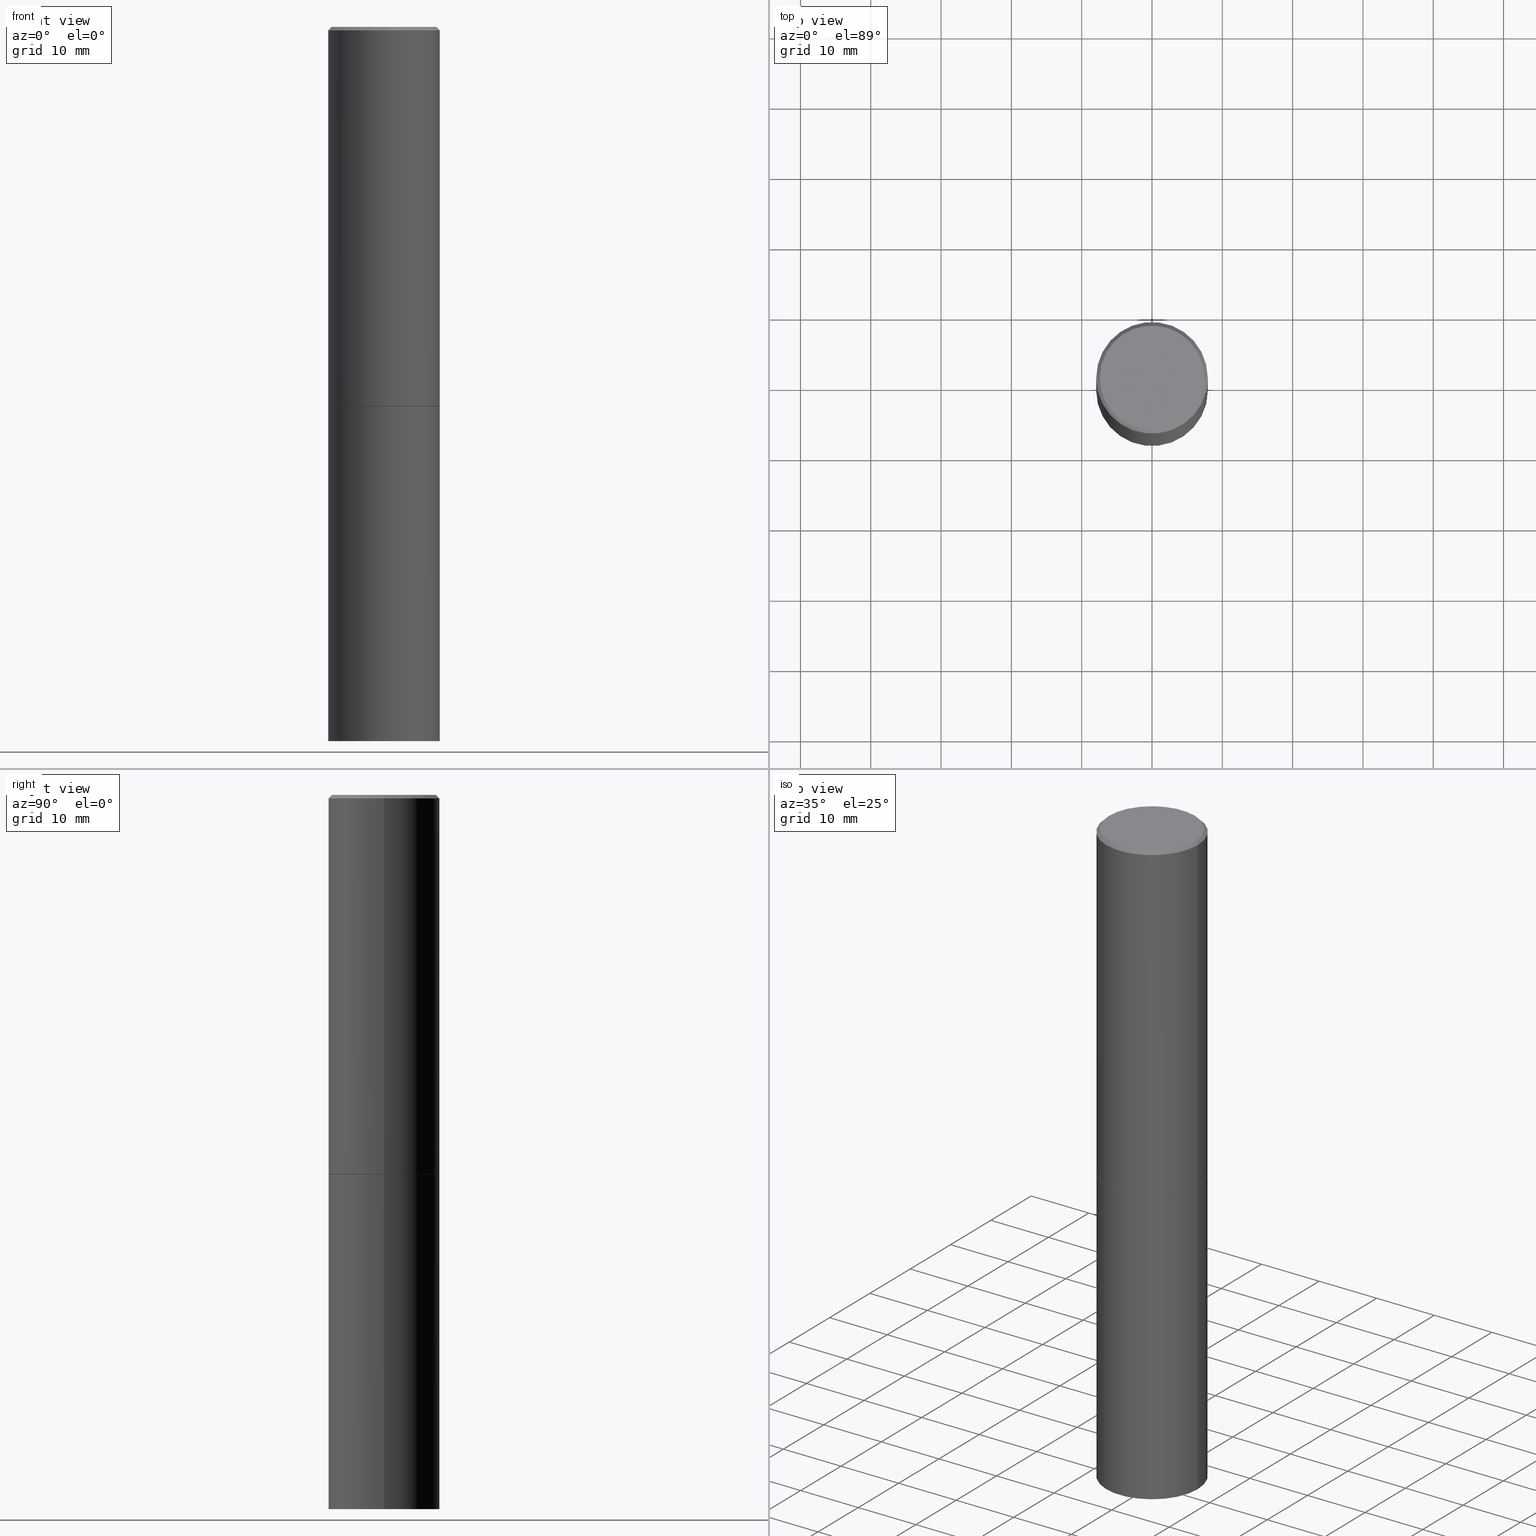
[diagram: canonical four-view strip — front | top / right | iso, engineering-drawing reading convention]
A machine part, canonical four-view strip (front | top / right | iso — engineering-drawing reading convention). The complete STEP part file that produces these views, byte-faithful:
ISO-10303-21;
HEADER;
FILE_DESCRIPTION (( 'STEP AP203' ),
    '1' );
FILE_NAME ('37565.STEP',
    '2024-02-27T22:16:43',
    ( '' ),
    ( '' ),
    'SwSTEP 2.0',
    'SolidWorks 2023',
    '' );
FILE_SCHEMA (( 'CONFIG_CONTROL_DESIGN' ));
ENDSEC;

DATA;
#1 = LINE ( 'NONE', #258, #333 ) ;
#2 = AXIS2_PLACEMENT_3D ( 'NONE', #279, #134, #167 ) ;
#3 = LOCAL_TIME ( 17, 16, 43.00000000000000000, #102 ) ;
#4 = PERSON_AND_ORGANIZATION_ROLE ( 'creator' ) ;
#5 = EDGE_LOOP ( 'NONE', ( #101, #124, #188, #237 ) ) ;
#6 = ADVANCED_FACE ( 'NONE', ( #228 ), #276, .T. ) ;
#7 = FACE_OUTER_BOUND ( 'NONE', #359, .T. ) ;
#8 = DATE_AND_TIME ( #67, #3 ) ;
#9 = EDGE_CURVE ( 'NONE', #137, #261, #304, .T. ) ;
#10 = CARTESIAN_POINT ( 'NONE',  ( 5.196621213143414147E-29, -7.419397845041682046E-15, -2.124999999999999556 ) ) ;
#11 = AXIS2_PLACEMENT_3D ( 'NONE', #185, #179, #73 ) ;
#12 = LINE ( 'NONE', #209, #243 ) ;
#13 = ORIENTED_EDGE ( 'NONE', *, *, #159, .T. ) ;
#14 = CARTESIAN_POINT ( 'NONE',  ( 2.042516583223231356E-15, 0.2924999999999997602, -1.019124035366569212E-15 ) ) ;
#15 = CC_DESIGN_DATE_AND_TIME_ASSIGNMENT ( #31, #171, ( #326 ) ) ;
#16 = DIRECTION ( 'NONE',  ( 2.438088387897960049E-29, -3.491481338843145188E-15, -1.000000000000000000 ) ) ;
#17 = CIRCLE ( 'NONE', #125, 0.3125000000000000000 ) ;
#18 = DIRECTION ( 'NONE',  ( -0.7071067811865232589, 7.493145998870265808E-15, 0.7071067811865715536 ) ) ;
#19 = AXIS2_PLACEMENT_3D ( 'NONE', #298, #296, #46 ) ;
#20 = ORIENTED_EDGE ( 'NONE', *, *, #60, .F. ) ;
#21 = ADVANCED_FACE ( 'NONE', ( #55 ), #321, .T. ) ;
#22 = PERSON_AND_ORGANIZATION_ROLE ( 'design_owner' ) ;
#23 = COORDINATED_UNIVERSAL_TIME_OFFSET ( 5, 0, .BEHIND. ) ;
#24 = EDGE_LOOP ( 'NONE', ( #354, #295 ) ) ;
#25 = CARTESIAN_POINT ( 'NONE',  ( 0.000000000000000000, 0.000000000000000000, 0.000000000000000000 ) ) ;
#26 = CARTESIAN_POINT ( 'NONE',  ( 0.3124999999999998335, -2.213735251080465334E-15, -0.02000000000000007674 ) ) ;
#27 = ORIENTED_EDGE ( 'NONE', *, *, #9, .T. ) ;
#28 = PERSON_AND_ORGANIZATION ( #180, #305 ) ;
#29 = DIRECTION ( 'NONE',  ( -2.445468806185136597E-29, 3.491481338843145583E-15, 1.000000000000000000 ) ) ;
#30 = VERTEX_POINT ( 'NONE', #53 ) ;
#31 = DATE_AND_TIME ( #57, #52 ) ;
#32 = ORIENTED_EDGE ( 'NONE', *, *, #348, .F. ) ;
#33 = CARTESIAN_POINT ( 'NONE',  ( 0.3114999999999999991, -9.594590719140955956E-15, -2.124999999999999556 ) ) ;
#34 = CARTESIAN_POINT ( 'NONE',  ( -0.3114999999999999991, -5.200758768800747571E-15, -2.124999999999999556 ) ) ;
#35 = VECTOR ( 'NONE', #136, 39.37007874015748143 ) ;
#36 = AXIS2_PLACEMENT_3D ( 'NONE', #241, #183, #40 ) ;
#37 = COORDINATED_UNIVERSAL_TIME_OFFSET ( 5, 0, .BEHIND. ) ;
#38 = DIRECTION ( 'NONE',  ( 1.000000000000000000, -6.982962677686265133E-15, 0.000000000000000000 ) ) ;
#39 = ORIENTED_EDGE ( 'NONE', *, *, #257, .T. ) ;
#40 = DIRECTION ( 'NONE',  ( 1.000000000000000000, -6.982962677686266711E-15, 4.876176775795936353E-29 ) ) ;
#41 = CIRCLE ( 'NONE', #292, 0.2924999999999997602 ) ;
#42 = CC_DESIGN_APPROVAL ( #347, ( #255 ) ) ;
#43 = CARTESIAN_POINT ( 'NONE',  ( 5.196621213143414147E-29, -7.419397845041682046E-15, -2.124999999999999556 ) ) ;
#44 = FACE_OUTER_BOUND ( 'NONE', #5, .T. ) ;
#45 = VERTEX_POINT ( 'NONE', #331 ) ;
#46 = DIRECTION ( 'NONE',  ( 1.000000000000000000, -6.982962677686265133E-15, 0.000000000000000000 ) ) ;
#47 = APPLICATION_CONTEXT ( 'configuration controlled 3d designs of mechanical parts and assemblies' ) ;
#48 =( NAMED_UNIT ( * ) PLANE_ANGLE_UNIT ( ) SI_UNIT ( $, .RADIAN. ) );
#49 = CARTESIAN_POINT ( 'NONE',  ( 0.3125000000000000000, -1.614810119214954068E-14, -4.000000000000000000 ) ) ;
#50 = CALENDAR_DATE ( 2024, 27, 2 ) ;
#51 = VECTOR ( 'NONE', #194, 39.37007874015748143 ) ;
#52 = LOCAL_TIME ( 17, 16, 43.00000000000000000, #224 ) ;
#53 = CARTESIAN_POINT ( 'NONE',  ( 0.2924999999999997602, -2.110215457714318353E-15, 4.268512490114932791E-18 ) ) ;
#54 = ADVANCED_FACE ( 'NONE', ( #330 ), #251, .F. ) ;
#55 = FACE_OUTER_BOUND ( 'NONE', #122, .T. ) ;
#56 = ORIENTED_EDGE ( 'NONE', *, *, #80, .F. ) ;
#57 = CALENDAR_DATE ( 2024, 27, 2 ) ;
#58 = DIRECTION ( 'NONE',  ( 1.000000000000000000, -6.982962677686269077E-15, 0.000000000000000000 ) ) ;
#59 = DESIGN_CONTEXT ( 'detailed design', #264, 'design' ) ;
#60 = EDGE_CURVE ( 'NONE', #30, #261, #272, .T. ) ;
#61 = CIRCLE ( 'NONE', #19, 0.3125000000000000000 ) ;
#62 = ORIENTED_EDGE ( 'NONE', *, *, #318, .T. ) ;
#63 = CALENDAR_DATE ( 2024, 27, 2 ) ;
#64 = DIRECTION ( 'NONE',  ( -2.445468806185136597E-29, 3.491481338843145583E-15, 1.000000000000000000 ) ) ;
#65 = AXIS2_PLACEMENT_3D ( 'NONE', #149, #265, #58 ) ;
#66 = CIRCLE ( 'NONE', #153, 0.3125000000000000000 ) ;
#67 = CALENDAR_DATE ( 2024, 27, 2 ) ;
#68 = DIRECTION ( 'NONE',  ( 1.000000000000000000, -6.982962677686269077E-15, 0.000000000000000000 ) ) ;
#69 = PLANE ( 'NONE',  #161 ) ;
#70 = DIRECTION ( 'NONE',  ( -1.000000000000000000, 6.982962677686265922E-15, -4.876176775795935793E-29 ) ) ;
#71 = ORIENTED_EDGE ( 'NONE', *, *, #175, .T. ) ;
#72 = PLANE ( 'NONE',  #213 ) ;
#73 = DIRECTION ( 'NONE',  ( 1.000000000000000000, -6.982962677686265133E-15, 0.000000000000000000 ) ) ;
#74 = DIRECTION ( 'NONE',  ( 1.000000000000000000, -6.982962677686266711E-15, 4.876067333457693400E-29 ) ) ;
#75 = CC_DESIGN_PERSON_AND_ORGANIZATION_ASSIGNMENT ( #117, #338, ( #255 ) ) ;
#76 = CC_DESIGN_DATE_AND_TIME_ASSIGNMENT ( #290, #260, ( #104 ) ) ;
#77 = DIRECTION ( 'NONE',  ( -2.445468806185136597E-29, 3.491481338843145583E-15, 1.000000000000000000 ) ) ;
#78 = EDGE_CURVE ( 'NONE', #113, #261, #82, .T. ) ;
#79 = DIRECTION ( 'NONE',  ( 1.000000000000000000, -6.982962677686269077E-15, 0.000000000000000000 ) ) ;
#80 = EDGE_CURVE ( 'NONE', #111, #45, #246, .T. ) ;
#81 =( LENGTH_UNIT ( ) NAMED_UNIT ( * ) SI_UNIT ( $, .METRE. ) );
#82 = LINE ( 'NONE', #112, #51 ) ;
#83 =( CONVERSION_BASED_UNIT ( 'INCH', #135 ) LENGTH_UNIT ( ) NAMED_UNIT ( #266 ) );
#84 = AXIS2_PLACEMENT_3D ( 'NONE', #119, #120, #92 ) ;
#85 = CONICAL_SURFACE ( 'NONE', #196, 0.3124999999999998335, 0.7853981633974469467 ) ;
#86 = UNCERTAINTY_MEASURE_WITH_UNIT (LENGTH_MEASURE( 1.000000000000000082E-05 ), #83, 'distance_accuracy_value', 'NONE');
#87 = CYLINDRICAL_SURFACE ( 'NONE', #147, 0.3124999999999998890 ) ;
#88 = EDGE_CURVE ( 'NONE', #223, #337, #220, .T. ) ;
#89 = CYLINDRICAL_SURFACE ( 'NONE', #84, 0.3125000000000000000 ) ;
#90 = ORIENTED_EDGE ( 'NONE', *, *, #342, .T. ) ;
#91 = PERSON_AND_ORGANIZATION ( #180, #305 ) ;
#92 = DIRECTION ( 'NONE',  ( 1.000000000000000000, -6.982962677686266711E-15, 4.876176775795936353E-29 ) ) ;
#93 = ADVANCED_FACE ( 'NONE', ( #225 ), #87, .T. ) ;
#94 = PERSON_AND_ORGANIZATION ( #180, #305 ) ;
#95 = ORIENTED_EDGE ( 'NONE', *, *, #280, .F. ) ;
#96 = CONICAL_SURFACE ( 'NONE', #236, 0.3114999999999999991, 0.7853981633974141952 ) ;
#97 = FACE_OUTER_BOUND ( 'NONE', #181, .T. ) ;
#98 = DIRECTION ( 'NONE',  ( 2.445468806185136597E-29, -3.491481338843145583E-15, -1.000000000000000000 ) ) ;
#99 = CARTESIAN_POINT ( 'NONE',  ( -0.3125000000000000000, -8.472215550956819896E-15, -4.000000000000000000 ) ) ;
#100 = VECTOR ( 'NONE', #192, 39.37007874015748143 ) ;
#101 = ORIENTED_EDGE ( 'NONE', *, *, #257, .F. ) ;
#102 = COORDINATED_UNIVERSAL_TIME_OFFSET ( 5, 0, .BEHIND. ) ;
#103 = FACE_OUTER_BOUND ( 'NONE', #327, .T. ) ;
#104 = PRODUCT_DEFINITION ( 'UNKNOWN', '', #255, #59 ) ;
#105 = PERSON_AND_ORGANIZATION ( #180, #305 ) ;
#106 = CC_DESIGN_PERSON_AND_ORGANIZATION_ASSIGNMENT ( #91, #306, ( #104 ) ) ;
#107 = ORIENTED_EDGE ( 'NONE', *, *, #78, .F. ) ;
#108 = CIRCLE ( 'NONE', #130, 0.3114999999999999991 ) ;
#109 = APPLICATION_PROTOCOL_DEFINITION ( 'international standard', 'config_control_design', 1994, #47 ) ;
#110 = DIRECTION ( 'NONE',  ( 2.445468806185136597E-29, -3.491481338843145583E-15, -1.000000000000000000 ) ) ;
#111 = VERTEX_POINT ( 'NONE', #49 ) ;
#112 = CARTESIAN_POINT ( 'NONE',  ( 0.3124999999999998890, -2.182175836776957558E-15, 1.523805242436229235E-29 ) ) ;
#113 = VERTEX_POINT ( 'NONE', #162 ) ;
#114 = CALENDAR_DATE ( 2024, 27, 2 ) ;
#115 = AXIS2_PLACEMENT_3D ( 'NONE', #282, #29, #235 ) ;
#116 = ORIENTED_EDGE ( 'NONE', *, *, #145, .T. ) ;
#117 = PERSON_AND_ORGANIZATION ( #180, #305 ) ;
#118 = ORIENTED_EDGE ( 'NONE', *, *, #332, .F. ) ;
#119 = CARTESIAN_POINT ( 'NONE',  ( 0.000000000000000000, 0.000000000000000000, 0.000000000000000000 ) ) ;
#120 = DIRECTION ( 'NONE',  ( -2.445468806185136597E-29, 3.491481338843145583E-15, 1.000000000000000000 ) ) ;
#121 = AXIS2_PLACEMENT_3D ( 'NONE', #358, #249, #215 ) ;
#122 = EDGE_LOOP ( 'NONE', ( #208, #281, #71, #214 ) ) ;
#123 = SECURITY_CLASSIFICATION_LEVEL ( 'unclassified' ) ;
#124 = ORIENTED_EDGE ( 'NONE', *, *, #200, .T. ) ;
#125 = AXIS2_PLACEMENT_3D ( 'NONE', #169, #205, #38 ) ;
#126 = CC_DESIGN_APPROVAL ( #263, ( #104 ) ) ;
#127 = ORIENTED_EDGE ( 'NONE', *, *, #150, .T. ) ;
#128 = CARTESIAN_POINT ( 'NONE',  ( 2.182175836777010017E-15, 0.3124999999999925615, -2.125000000000000888 ) ) ;
#129 = AXIS2_PLACEMENT_3D ( 'NONE', #314, #363, #294 ) ;
#130 = AXIS2_PLACEMENT_3D ( 'NONE', #43, #244, #350 ) ;
#131 = CARTESIAN_POINT ( 'NONE',  ( -0.2924999999999997602, 2.077431396611662611E-15, 4.268512490086005323E-18 ) ) ;
#132 = APPLICATION_PROTOCOL_DEFINITION ( 'international standard', 'config_control_design', 1994, #264 ) ;
#133 = VERTEX_POINT ( 'NONE', #33 ) ;
#134 = DIRECTION ( 'NONE',  ( -2.438088387897960049E-29, 3.491481338843145188E-15, 1.000000000000000000 ) ) ;
#135 = LENGTH_MEASURE_WITH_UNIT ( LENGTH_MEASURE( 0.02539999999999999897 ), #81 );
#136 = DIRECTION ( 'NONE',  ( 0.7071067811865465735, -7.319954787623252890E-15, -0.7071067811865484609 ) ) ;
#137 = VERTEX_POINT ( 'NONE', #142 ) ;
#138 = CARTESIAN_POINT ( 'NONE',  ( 0.3125000000000000000, -2.182175836776958347E-15, 1.523805242436230075E-29 ) ) ;
#139 = ADVANCED_FACE ( 'NONE', ( #7 ), #89, .T. ) ;
#140 = CC_DESIGN_PERSON_AND_ORGANIZATION_ASSIGNMENT ( #28, #4, ( #255 ) ) ;
#141 = CC_DESIGN_SECURITY_CLASSIFICATION ( #326, ( #255 ) ) ;
#142 = CARTESIAN_POINT ( 'NONE',  ( -0.3124999999999998335, 2.112346210000093866E-15, -0.02000000000000007674 ) ) ;
#143 = ORIENTED_EDGE ( 'NONE', *, *, #318, .F. ) ;
#144 = DIRECTION ( 'NONE',  ( 1.000000000000000000, -6.982962677686266711E-15, 4.876067333457693400E-29 ) ) ;
#145 = EDGE_CURVE ( 'NONE', #240, #137, #287, .T. ) ;
#146 = DIRECTION ( 'NONE',  ( 1.000000000000000000, -6.982962677686266711E-15, 4.876176775795935232E-29 ) ) ;
#147 = AXIS2_PLACEMENT_3D ( 'NONE', #303, #360, #199 ) ;
#148 = CIRCLE ( 'NONE', #178, 0.2924999999999997602 ) ;
#149 = CARTESIAN_POINT ( 'NONE',  ( 5.196621213143414147E-29, -7.419397845041682046E-15, -2.124999999999999556 ) ) ;
#150 = EDGE_CURVE ( 'NONE', #357, #137, #262, .T. ) ;
#151 = CYLINDRICAL_SURFACE ( 'NONE', #36, 0.3125000000000000000 ) ;
#152 = DIRECTION ( 'NONE',  ( -2.445468806185136597E-29, 3.491481338843145583E-15, 1.000000000000000000 ) ) ;
#153 = AXIS2_PLACEMENT_3D ( 'NONE', #329, #77, #79 ) ;
#154 = ORIENTED_EDGE ( 'NONE', *, *, #210, .T. ) ;
#155 = PLANE ( 'NONE',  #334 ) ;
#156 = DIRECTION ( 'NONE',  ( 2.438088387897960049E-29, -3.491481338843145188E-15, -1.000000000000000000 ) ) ;
#157 = ORIENTED_EDGE ( 'NONE', *, *, #88, .F. ) ;
#158 = VERTEX_POINT ( 'NONE', #34 ) ;
#159 = EDGE_CURVE ( 'NONE', #30, #240, #41, .T. ) ;
#160 = CARTESIAN_POINT ( 'NONE',  ( -0.3125000000000000000, -8.472215550956819896E-15, -2.124999999999999556 ) ) ;
#161 = AXIS2_PLACEMENT_3D ( 'NONE', #187, #16, #206 ) ;
#162 = CARTESIAN_POINT ( 'NONE',  ( 0.3125000000000000000, -9.598082200479797386E-15, -2.123999999999999666 ) ) ;
#163 = APPROVAL_STATUS ( 'not_yet_approved' ) ;
#164 = DATE_AND_TIME ( #50, #284 ) ;
#165 = DIRECTION ( 'NONE',  ( -2.445468806185136597E-29, 3.491481338843145583E-15, 1.000000000000000000 ) ) ;
#166 = AXIS2_PLACEMENT_3D ( 'NONE', #190, #110, #356 ) ;
#167 = DIRECTION ( 'NONE',  ( 1.000000000000000000, -6.982962677686265922E-15, 4.876176775795935793E-29 ) ) ;
#168 = CC_DESIGN_PERSON_AND_ORGANIZATION_ASSIGNMENT ( #105, #22, ( #366 ) ) ;
#169 = CARTESIAN_POINT ( 'NONE',  ( 5.194175744337229665E-29, -7.415906363702840616E-15, -2.123999999999999666 ) ) ;
#170 = ORIENTED_EDGE ( 'NONE', *, *, #9, .F. ) ;
#171 = DATE_TIME_ROLE ( 'classification_date' ) ;
#172 = APPROVAL_PERSON_ORGANIZATION ( #286, #219, #186 ) ;
#173 = EDGE_LOOP ( 'NONE', ( #256, #362 ) ) ;
#174 = APPROVAL_STATUS ( 'not_yet_approved' ) ;
#175 = EDGE_CURVE ( 'NONE', #261, #137, #248, .T. ) ;
#176 = DIRECTION ( 'NONE',  ( -0.7071067811865465735, 2.468850131082246805E-15, -0.7071067811865484609 ) ) ;
#177 = AXIS2_PLACEMENT_3D ( 'NONE', #341, #64, #146 ) ;
#178 = AXIS2_PLACEMENT_3D ( 'NONE', #277, #218, #74 ) ;
#179 = DIRECTION ( 'NONE',  ( -2.445468806185136597E-29, 3.491481338843145583E-15, 1.000000000000000000 ) ) ;
#180 = PERSON ( 'UNSPECIFIED', 'UNSPECIFIED', 'UNSPECIFIED', ('UNSPECIFIED'), ('UNSPECIFIED'), ('UNSPECIFIED') ) ;
#181 = EDGE_LOOP ( 'NONE', ( #252, #62 ) ) ;
#182 = EDGE_CURVE ( 'NONE', #133, #113, #1, .T. ) ;
#183 = DIRECTION ( 'NONE',  ( -2.445468806185136597E-29, 3.491481338843145583E-15, 1.000000000000000000 ) ) ;
#184 = AXIS2_PLACEMENT_3D ( 'NONE', #216, #165, #278 ) ;
#185 = CARTESIAN_POINT ( 'NONE',  ( 5.196621213143414147E-29, -7.419397845041682046E-15, -2.124999999999999556 ) ) ;
#186 = APPROVAL_ROLE ( '' ) ;
#187 = CARTESIAN_POINT ( 'NONE',  ( 2.182175836777055771E-15, 0.3124999999999860667, -4.000000000000000888 ) ) ;
#188 = ORIENTED_EDGE ( 'NONE', *, *, #182, .T. ) ;
#189 = ADVANCED_FACE ( 'NONE', ( #231 ), #233, .T. ) ;
#190 = CARTESIAN_POINT ( 'NONE',  ( 4.890937612370292426E-31, -6.982962677686317493E-17, -0.02000000000000007674 ) ) ;
#191 = MECHANICAL_CONTEXT ( 'NONE', #47, 'mechanical' ) ;
#192 = DIRECTION ( 'NONE',  ( -2.445468806185136877E-29, 3.491481338843145188E-15, 1.000000000000000000 ) ) ;
#193 = EDGE_CURVE ( 'NONE', #357, #113, #17, .T. ) ;
#194 = DIRECTION ( 'NONE',  ( -2.445468806185136877E-29, 3.491481338843145188E-15, 1.000000000000000000 ) ) ;
#195 = ADVANCED_BREP_SHAPE_REPRESENTATION ( '37565', ( #211, #336, #322 ), #311 ) ;
#196 = AXIS2_PLACEMENT_3D ( 'NONE', #323, #98, #325 ) ;
#197 = ORIENTED_EDGE ( 'NONE', *, *, #364, .T. ) ;
#198 = ORIENTED_EDGE ( 'NONE', *, *, #332, .T. ) ;
#199 = DIRECTION ( 'NONE',  ( 1.000000000000000000, -6.982962677686266711E-15, 4.876176775795935232E-29 ) ) ;
#200 = EDGE_CURVE ( 'NONE', #158, #133, #221, .T. ) ;
#201 = AXIS2_PLACEMENT_3D ( 'NONE', #267, #349, #328 ) ;
#202 = CARTESIAN_POINT ( 'NONE',  ( -0.3124999999999998890, 2.220446049250312292E-15, -1.537167215704657391E-29 ) ) ;
#203 = EDGE_LOOP ( 'NONE', ( #90, #39, #118, #285 ) ) ;
#204 = DIRECTION ( 'NONE',  ( 0.7071067811865232589, -2.468850131082003836E-15, 0.7071067811865715536 ) ) ;
#205 = DIRECTION ( 'NONE',  ( -2.445468806185136597E-29, 3.491481338843145583E-15, 1.000000000000000000 ) ) ;
#206 = DIRECTION ( 'NONE',  ( -1.000000000000000000, 6.982962677686265922E-15, -4.876176775795935793E-29 ) ) ;
#207 = LOCAL_TIME ( 17, 16, 43.00000000000000000, #37 ) ;
#208 = ORIENTED_EDGE ( 'NONE', *, *, #159, .F. ) ;
#209 = CARTESIAN_POINT ( 'NONE',  ( -0.3114999999999999991, -5.206057223148969973E-15, -2.124999999999999556 ) ) ;
#210 = EDGE_CURVE ( 'NONE', #223, #111, #270, .T. ) ;
#211 = MANIFOLD_SOLID_BREP ( 'Body-Move/Copy2[1]', #310 ) ;
#212 = CARTESIAN_POINT ( 'NONE',  ( -0.3125000000000000000, -1.522421945989535918E-15, -2.123999999999999666 ) ) ;
#213 = AXIS2_PLACEMENT_3D ( 'NONE', #128, #156, #70 ) ;
#214 = ORIENTED_EDGE ( 'NONE', *, *, #145, .F. ) ;
#215 = DIRECTION ( 'NONE',  ( 1.000000000000000000, -6.982962677686269077E-15, 0.000000000000000000 ) ) ;
#216 = CARTESIAN_POINT ( 'NONE',  ( 4.890937612370292426E-31, -6.982962677686317493E-17, -0.02000000000000007674 ) ) ;
#217 = ORIENTED_EDGE ( 'NONE', *, *, #150, .F. ) ;
#218 = DIRECTION ( 'NONE',  ( -2.445468806185136597E-29, 3.491481338843145583E-15, 1.000000000000000000 ) ) ;
#219 = APPROVAL ( #174, 'UNSPECIFIED' ) ;
#220 = LINE ( 'NONE', #302, #340 ) ;
#221 = CIRCLE ( 'NONE', #65, 0.3114999999999999991 ) ;
#222 = CIRCLE ( 'NONE', #201, 0.3125000000000000000 ) ;
#223 = VERTEX_POINT ( 'NONE', #99 ) ;
#224 = COORDINATED_UNIVERSAL_TIME_OFFSET ( 5, 0, .BEHIND. ) ;
#225 = FACE_OUTER_BOUND ( 'NONE', #335, .T. ) ;
#226 = EDGE_LOOP ( 'NONE', ( #197, #346, #95, #56 ) ) ;
#227 = DIRECTION ( 'NONE',  ( -2.445468806185136877E-29, 3.491481338843145188E-15, 1.000000000000000000 ) ) ;
#228 = FACE_OUTER_BOUND ( 'NONE', #203, .T. ) ;
#229 = EDGE_LOOP ( 'NONE', ( #365, #13 ) ) ;
#230 = APPROVAL_STATUS ( 'not_yet_approved' ) ;
#231 = FACE_OUTER_BOUND ( 'NONE', #275, .T. ) ;
#232 = DATE_AND_TIME ( #63, #207 ) ;
#233 = CYLINDRICAL_SURFACE ( 'NONE', #177, 0.3124999999999998890 ) ;
#234 = APPROVAL_DATE_TIME ( #8, #219 ) ;
#235 = DIRECTION ( 'NONE',  ( 1.000000000000000000, -6.982962677686269077E-15, 0.000000000000000000 ) ) ;
#236 = AXIS2_PLACEMENT_3D ( 'NONE', #10, #152, #68 ) ;
#237 = ORIENTED_EDGE ( 'NONE', *, *, #193, .F. ) ;
#238 = ADVANCED_FACE ( 'NONE', ( #269 ), #69, .T. ) ;
#239 = SHAPE_DEFINITION_REPRESENTATION ( #315, #195 ) ;
#240 = VERTEX_POINT ( 'NONE', #131 ) ;
#241 = CARTESIAN_POINT ( 'NONE',  ( 0.000000000000000000, 0.000000000000000000, 0.000000000000000000 ) ) ;
#242 = VECTOR ( 'NONE', #227, 39.37007874015748143 ) ;
#243 = VECTOR ( 'NONE', #18, 39.37007874015748854 ) ;
#244 = DIRECTION ( 'NONE',  ( -2.445468806185136597E-29, 3.491481338843145583E-15, 1.000000000000000000 ) ) ;
#245 = PERSON_AND_ORGANIZATION ( #180, #305 ) ;
#246 = LINE ( 'NONE', #138, #100 ) ;
#247 = ADVANCED_FACE ( 'NONE', ( #44 ), #96, .T. ) ;
#248 = CIRCLE ( 'NONE', #129, 0.3124999999999998335 ) ;
#249 = DIRECTION ( 'NONE',  ( -2.445468806185136597E-29, 3.491481338843145583E-15, 1.000000000000000000 ) ) ;
#250 = ADVANCED_FACE ( 'NONE', ( #103 ), #85, .T. ) ;
#251 = PLANE ( 'NONE',  #2 ) ;
#252 = ORIENTED_EDGE ( 'NONE', *, *, #280, .T. ) ;
#253 = DIRECTION ( 'NONE',  ( 0.000000000000000000, 0.000000000000000000, 1.000000000000000000 ) ) ;
#254 = DIRECTION ( 'NONE',  ( -2.445468806185136877E-29, 3.491481338843145188E-15, 1.000000000000000000 ) ) ;
#255 = PRODUCT_DEFINITION_FORMATION_WITH_SPECIFIED_SOURCE ( 'ANY', '', #366, .NOT_KNOWN. ) ;
#256 = ORIENTED_EDGE ( 'NONE', *, *, #342, .F. ) ;
#257 = EDGE_CURVE ( 'NONE', #158, #357, #12, .T. ) ;
#258 = CARTESIAN_POINT ( 'NONE',  ( 0.3114999999999999991, -9.594590719140955956E-15, -2.124999999999999556 ) ) ;
#259 = ORIENTED_EDGE ( 'NONE', *, *, #80, .T. ) ;
#260 = DATE_TIME_ROLE ( 'creation_date' ) ;
#261 = VERTEX_POINT ( 'NONE', #324 ) ;
#262 = LINE ( 'NONE', #202, #242 ) ;
#263 = APPROVAL ( #163, 'UNSPECIFIED' ) ;
#264 = APPLICATION_CONTEXT ( 'configuration controlled 3d designs of mechanical parts and assemblies' ) ;
#265 = DIRECTION ( 'NONE',  ( -2.445468806185136597E-29, 3.491481338843145583E-15, 1.000000000000000000 ) ) ;
#266 = DIMENSIONAL_EXPONENTS ( 1.000000000000000000, 0.000000000000000000, 0.000000000000000000, 0.000000000000000000, 0.000000000000000000, 0.000000000000000000, 0.000000000000000000 ) ;
#267 = CARTESIAN_POINT ( 'NONE',  ( 5.196621213143414147E-29, -7.419397845041682046E-15, -2.124999999999999556 ) ) ;
#268 = CIRCLE ( 'NONE', #11, 0.3125000000000000000 ) ;
#269 = FACE_OUTER_BOUND ( 'NONE', #24, .T. ) ;
#270 = CIRCLE ( 'NONE', #115, 0.3125000000000000000 ) ;
#271 = ADVANCED_FACE ( 'NONE', ( #97 ), #72, .F. ) ;
#272 = LINE ( 'NONE', #26, #35 ) ;
#273 = DIRECTION ( 'NONE',  ( -1.000000000000000000, 6.982962677686265922E-15, -4.876176775795935793E-29 ) ) ;
#274 = APPROVAL_DATE_TIME ( #164, #263 ) ;
#275 = EDGE_LOOP ( 'NONE', ( #198, #127, #288, #107 ) ) ;
#276 = CONICAL_SURFACE ( 'NONE', #121, 0.3114999999999999991, 0.7853981633974141952 ) ;
#277 = CARTESIAN_POINT ( 'NONE',  ( -1.043851414335219820E-46, 1.490343170380447200E-32, 4.268512490100411279E-18 ) ) ;
#278 = DIRECTION ( 'NONE',  ( 1.000000000000000000, -6.982962677686265133E-15, 0.000000000000000000 ) ) ;
#279 = CARTESIAN_POINT ( 'NONE',  ( 5.196621213143414147E-29, -7.419397845041682046E-15, -2.124999999999999556 ) ) ;
#280 = EDGE_CURVE ( 'NONE', #45, #337, #268, .T. ) ;
#281 = ORIENTED_EDGE ( 'NONE', *, *, #60, .T. ) ;
#282 = CARTESIAN_POINT ( 'NONE',  ( 9.781875224740546387E-29, -1.396592535537258233E-14, -4.000000000000000000 ) ) ;
#283 = VECTOR ( 'NONE', #176, 39.37007874015748143 ) ;
#284 = LOCAL_TIME ( 17, 16, 43.00000000000000000, #23 ) ;
#285 = ORIENTED_EDGE ( 'NONE', *, *, #182, .F. ) ;
#286 = PERSON_AND_ORGANIZATION ( #180, #305 ) ;
#287 = LINE ( 'NONE', #309, #283 ) ;
#288 = ORIENTED_EDGE ( 'NONE', *, *, #175, .F. ) ;
#289 = ADVANCED_FACE ( 'NONE', ( #297 ), #151, .T. ) ;
#290 = DATE_AND_TIME ( #114, #361 ) ;
#291 = CC_DESIGN_PERSON_AND_ORGANIZATION_ASSIGNMENT ( #94, #319, ( #326 ) ) ;
#292 = AXIS2_PLACEMENT_3D ( 'NONE', #307, #320, #144 ) ;
#293 = PERSON_AND_ORGANIZATION ( #180, #305 ) ;
#294 = DIRECTION ( 'NONE',  ( 1.000000000000000000, -6.982962677686265133E-15, 0.000000000000000000 ) ) ;
#295 = ORIENTED_EDGE ( 'NONE', *, *, #210, .F. ) ;
#296 = DIRECTION ( 'NONE',  ( -2.445468806185136597E-29, 3.491481338843145583E-15, 1.000000000000000000 ) ) ;
#297 = FACE_OUTER_BOUND ( 'NONE', #226, .T. ) ;
#298 = CARTESIAN_POINT ( 'NONE',  ( 5.194175744337229665E-29, -7.415906363702840616E-15, -2.123999999999999666 ) ) ;
#299 = DIRECTION ( 'NONE',  ( 2.438088387897960049E-29, -3.491481338843145188E-15, -1.000000000000000000 ) ) ;
#300 = CC_DESIGN_APPROVAL ( #219, ( #326 ) ) ;
#301 = APPROVAL_ROLE ( '' ) ;
#302 = CARTESIAN_POINT ( 'NONE',  ( -0.3125000000000000000, 2.220446049250313081E-15, -1.537167215704658232E-29 ) ) ;
#303 = CARTESIAN_POINT ( 'NONE',  ( 0.000000000000000000, 0.000000000000000000, 0.000000000000000000 ) ) ;
#304 = CIRCLE ( 'NONE', #184, 0.3124999999999998335 ) ;
#305 = ORGANIZATION ( 'UNSPECIFIED', 'UNSPECIFIED', '' ) ;
#306 = PERSON_AND_ORGANIZATION_ROLE ( 'creator' ) ;
#307 = CARTESIAN_POINT ( 'NONE',  ( -1.043851414335219820E-46, 1.490343170380447200E-32, 4.268512490100411279E-18 ) ) ;
#308 = APPROVAL_DATE_TIME ( #232, #347 ) ;
#309 = CARTESIAN_POINT ( 'NONE',  ( -0.3124999999999998335, 2.112346210000093866E-15, -0.02000000000000007674 ) ) ;
#310 = CLOSED_SHELL ( 'NONE', ( #289, #238, #271, #139 ) ) ;
#311 =( GEOMETRIC_REPRESENTATION_CONTEXT ( 3 ) GLOBAL_UNCERTAINTY_ASSIGNED_CONTEXT ( ( #86 ) ) GLOBAL_UNIT_ASSIGNED_CONTEXT ( ( #83, #48, #355 ) ) REPRESENTATION_CONTEXT ( 'NONE', 'WORKASPACE' ) );
#312 = ORIENTED_EDGE ( 'NONE', *, *, #193, .T. ) ;
#313 = COORDINATED_UNIVERSAL_TIME_OFFSET ( 5, 0, .BEHIND. ) ;
#314 = CARTESIAN_POINT ( 'NONE',  ( 4.890937612370292426E-31, -6.982962677686317493E-17, -0.02000000000000007674 ) ) ;
#315 = PRODUCT_DEFINITION_SHAPE ( 'NONE', 'NONE',  #104 ) ;
#316 = APPROVAL_ROLE ( '' ) ;
#317 = PRODUCT_RELATED_PRODUCT_CATEGORY ( 'detail', '', ( #366 ) ) ;
#318 = EDGE_CURVE ( 'NONE', #337, #45, #222, .T. ) ;
#319 = PERSON_AND_ORGANIZATION_ROLE ( 'classification_officer' ) ;
#320 = DIRECTION ( 'NONE',  ( -2.445468806185136597E-29, 3.491481338843145583E-15, 1.000000000000000000 ) ) ;
#321 = CONICAL_SURFACE ( 'NONE', #166, 0.3124999999999998335, 0.7853981633974469467 ) ;
#322 = AXIS2_PLACEMENT_3D ( 'NONE', #25, #253, #351 ) ;
#323 = CARTESIAN_POINT ( 'NONE',  ( 4.890937612370292426E-31, -6.982962677686317493E-17, -0.02000000000000007674 ) ) ;
#324 = CARTESIAN_POINT ( 'NONE',  ( 0.3124999999999998335, -2.213735251080465334E-15, -0.02000000000000007674 ) ) ;
#325 = DIRECTION ( 'NONE',  ( -1.000000000000000000, 6.982962677686265133E-15, 0.000000000000000000 ) ) ;
#326 = SECURITY_CLASSIFICATION ( '', '', #123 ) ;
#327 = EDGE_LOOP ( 'NONE', ( #20, #32, #116, #27 ) ) ;
#328 = DIRECTION ( 'NONE',  ( 1.000000000000000000, -6.982962677686265133E-15, 0.000000000000000000 ) ) ;
#329 = CARTESIAN_POINT ( 'NONE',  ( 9.781875224740546387E-29, -1.396592535537258233E-14, -4.000000000000000000 ) ) ;
#330 = FACE_OUTER_BOUND ( 'NONE', #173, .T. ) ;
#331 = CARTESIAN_POINT ( 'NONE',  ( 0.3125000000000000000, -9.601573681818640393E-15, -2.124999999999999556 ) ) ;
#332 = EDGE_CURVE ( 'NONE', #113, #357, #61, .T. ) ;
#333 = VECTOR ( 'NONE', #204, 39.37007874015748854 ) ;
#334 = AXIS2_PLACEMENT_3D ( 'NONE', #14, #299, #273 ) ;
#335 = EDGE_LOOP ( 'NONE', ( #217, #312, #339, #170 ) ) ;
#336 = MANIFOLD_SOLID_BREP ( 'Body-Move/Copy2[2]', #352 ) ;
#337 = VERTEX_POINT ( 'NONE', #160 ) ;
#338 = PERSON_AND_ORGANIZATION_ROLE ( 'design_supplier' ) ;
#339 = ORIENTED_EDGE ( 'NONE', *, *, #78, .T. ) ;
#340 = VECTOR ( 'NONE', #254, 39.37007874015748143 ) ;
#341 = CARTESIAN_POINT ( 'NONE',  ( 0.000000000000000000, 0.000000000000000000, 0.000000000000000000 ) ) ;
#342 = EDGE_CURVE ( 'NONE', #133, #158, #108, .T. ) ;
#343 = APPROVAL_PERSON_ORGANIZATION ( #245, #263, #301 ) ;
#344 = FACE_OUTER_BOUND ( 'NONE', #229, .T. ) ;
#345 = ADVANCED_FACE ( 'NONE', ( #344 ), #155, .F. ) ;
#346 = ORIENTED_EDGE ( 'NONE', *, *, #88, .T. ) ;
#347 = APPROVAL ( #230, 'UNSPECIFIED' ) ;
#348 = EDGE_CURVE ( 'NONE', #240, #30, #148, .T. ) ;
#349 = DIRECTION ( 'NONE',  ( -2.445468806185136597E-29, 3.491481338843145583E-15, 1.000000000000000000 ) ) ;
#350 = DIRECTION ( 'NONE',  ( 1.000000000000000000, -6.982962677686269077E-15, 0.000000000000000000 ) ) ;
#351 = DIRECTION ( 'NONE',  ( 1.000000000000000000, 0.000000000000000000, 0.000000000000000000 ) ) ;
#352 = CLOSED_SHELL ( 'NONE', ( #6, #189, #21, #250, #93, #247, #54, #345 ) ) ;
#353 = APPROVAL_PERSON_ORGANIZATION ( #293, #347, #316 ) ;
#354 = ORIENTED_EDGE ( 'NONE', *, *, #364, .F. ) ;
#355 =( NAMED_UNIT ( * ) SI_UNIT ( $, .STERADIAN. ) SOLID_ANGLE_UNIT ( ) );
#356 = DIRECTION ( 'NONE',  ( -1.000000000000000000, 6.982962677686265133E-15, 0.000000000000000000 ) ) ;
#357 = VERTEX_POINT ( 'NONE', #212 ) ;
#358 = CARTESIAN_POINT ( 'NONE',  ( 5.196621213143414147E-29, -7.419397845041682046E-15, -2.124999999999999556 ) ) ;
#359 = EDGE_LOOP ( 'NONE', ( #157, #154, #259, #143 ) ) ;
#360 = DIRECTION ( 'NONE',  ( -2.445468806185136597E-29, 3.491481338843145583E-15, 1.000000000000000000 ) ) ;
#361 = LOCAL_TIME ( 17, 16, 43.00000000000000000, #313 ) ;
#362 = ORIENTED_EDGE ( 'NONE', *, *, #200, .F. ) ;
#363 = DIRECTION ( 'NONE',  ( -2.445468806185136597E-29, 3.491481338843145583E-15, 1.000000000000000000 ) ) ;
#364 = EDGE_CURVE ( 'NONE', #111, #223, #66, .T. ) ;
#365 = ORIENTED_EDGE ( 'NONE', *, *, #348, .T. ) ;
#366 = PRODUCT ( '37565', '37565', '', ( #191 ) ) ;
ENDSEC;
END-ISO-10303-21;
